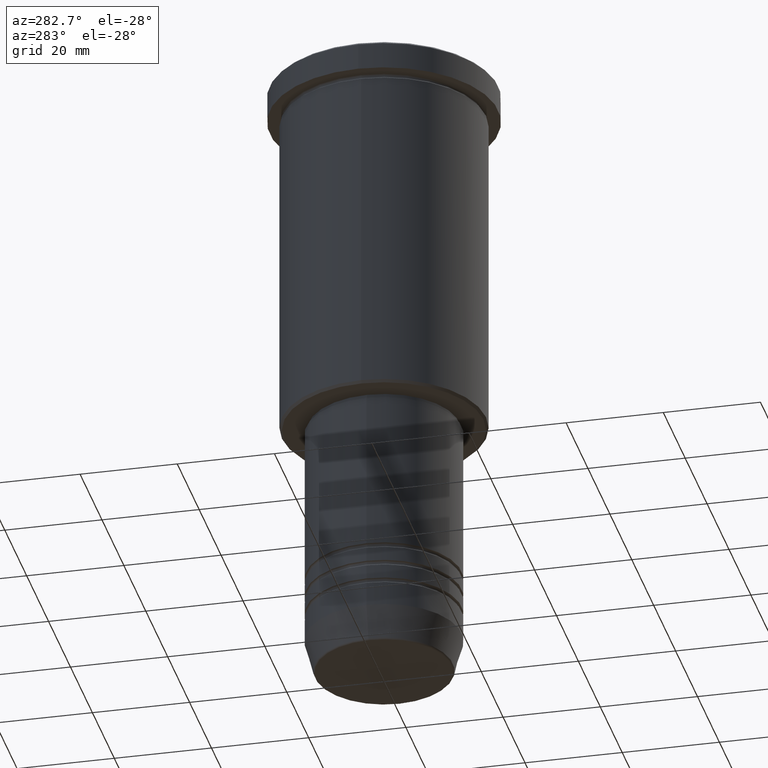
[diagram: clean part render]
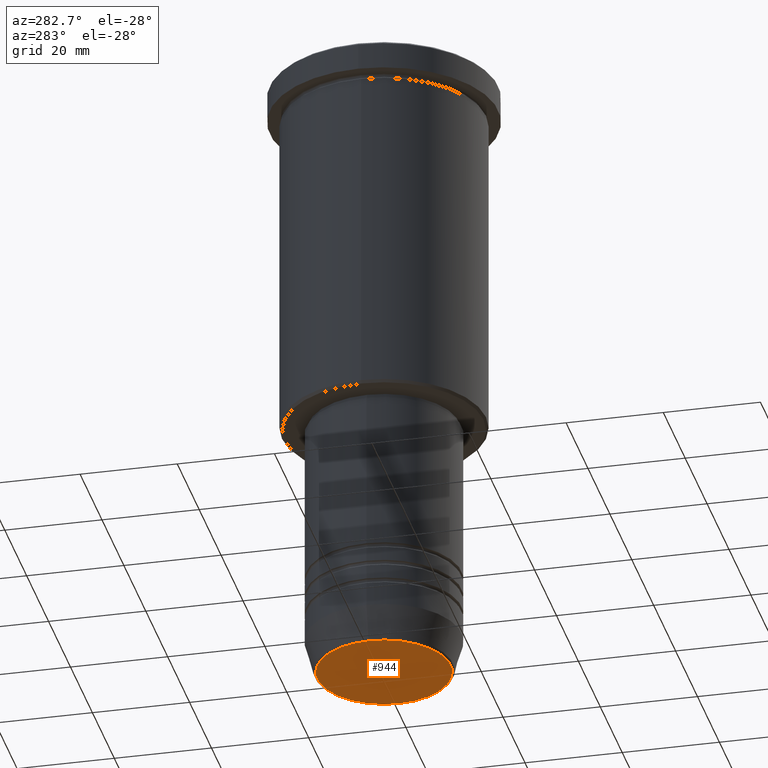
[diagram: same view with one face highlighted and labeled with its STEP entity id]
A machine part, auxiliary view. The second image highlights one B-rep face of the part: STEP entity #944.
In plain terms, the highlighted planar face has unit normal (0, -0, 1).
Its self-contained STEP definition (entity closure, byte-faithful):
#61 = CIRCLE ( 'NONE', #395, 13.74069215899265473 ) ;
#80 = DIRECTION ( 'NONE',  ( 1.000000000000000000, 0.000000000000000000, 0.000000000000000000 ) ) ;
#88 = DIRECTION ( 'NONE',  ( 1.000000000000000000, 0.000000000000000000, 0.000000000000000000 ) ) ;
#123 = DIRECTION ( 'NONE',  ( 0.000000000000000000, 0.000000000000000000, -1.000000000000000000 ) ) ;
#128 = DIRECTION ( 'NONE',  ( 1.000000000000000000, 0.000000000000000000, 0.000000000000000000 ) ) ;
#167 = CARTESIAN_POINT ( 'NONE',  ( 0.000000000000000000, 0.000000000000000000, -131.0000000000000000 ) ) ;
#201 = CARTESIAN_POINT ( 'NONE',  ( 0.000000000000000000, 0.000000000000000000, -131.0000000000000000 ) ) ;
#240 = CARTESIAN_POINT ( 'NONE',  ( 0.000000000000000000, 0.000000000000000000, -131.0000000000000000 ) ) ;
#246 = DIRECTION ( 'NONE',  ( 0.000000000000000000, -0.000000000000000000, 1.000000000000000000 ) ) ;
#253 = FACE_OUTER_BOUND ( 'NONE', #1129, .T. ) ;
#395 = AXIS2_PLACEMENT_3D ( 'NONE', #167, #1078, #88 ) ;
#426 = ORIENTED_EDGE ( 'NONE', *, *, #923, .T. ) ;
#477 = AXIS2_PLACEMENT_3D ( 'NONE', #201, #123, #128 ) ;
#495 = CIRCLE ( 'NONE', #477, 13.74069215899265473 ) ;
#506 = CARTESIAN_POINT ( 'NONE',  ( -13.74069215899265473, 1.712322416342415197E-15, -131.0000000000000000 ) ) ;
#541 = PLANE ( 'NONE',  #1027 ) ;
#572 = EDGE_CURVE ( 'NONE', #831, #869, #495, .T. ) ;
#736 = ORIENTED_EDGE ( 'NONE', *, *, #572, .T. ) ;
#831 = VERTEX_POINT ( 'NONE', #506 ) ;
#869 = VERTEX_POINT ( 'NONE', #969 ) ;
#923 = EDGE_CURVE ( 'NONE', #869, #831, #61, .T. ) ;
#944 = ADVANCED_FACE ( 'NONE', ( #253 ), #541, .F. ) ;
#969 = CARTESIAN_POINT ( 'NONE',  ( 13.74069215899265473, 0.000000000000000000, -131.0000000000000000 ) ) ;
#1027 = AXIS2_PLACEMENT_3D ( 'NONE', #240, #246, #80 ) ;
#1078 = DIRECTION ( 'NONE',  ( 0.000000000000000000, 0.000000000000000000, -1.000000000000000000 ) ) ;
#1129 = EDGE_LOOP ( 'NONE', ( #426, #736 ) ) ;